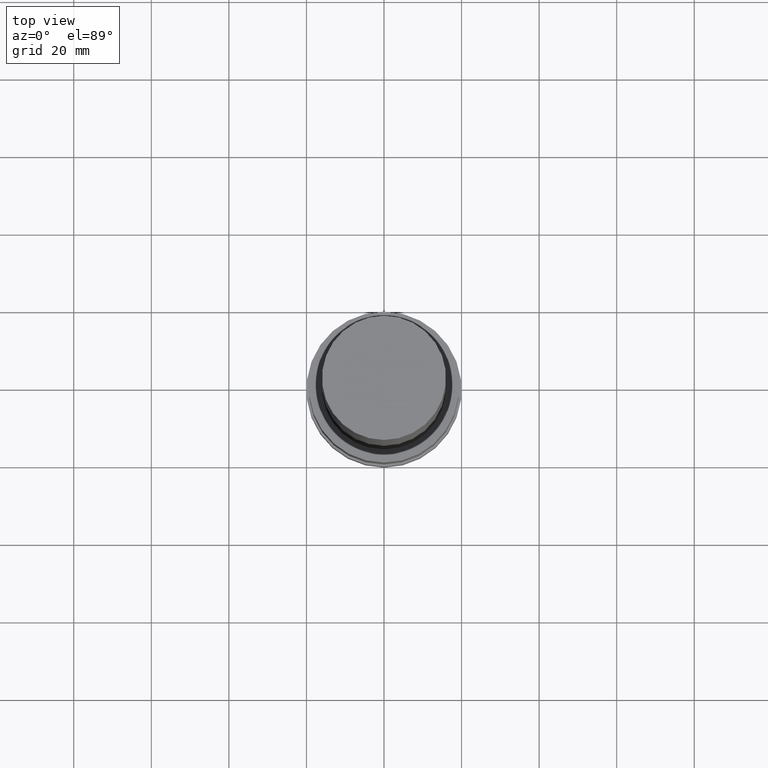
[diagram: clean part render]
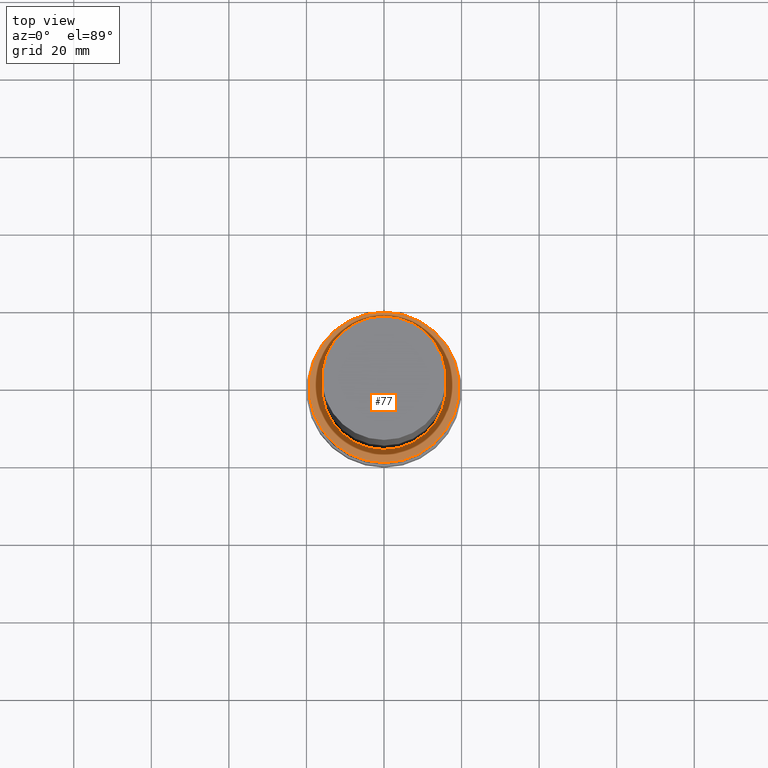
[diagram: same view with one face highlighted and labeled with its STEP entity id]
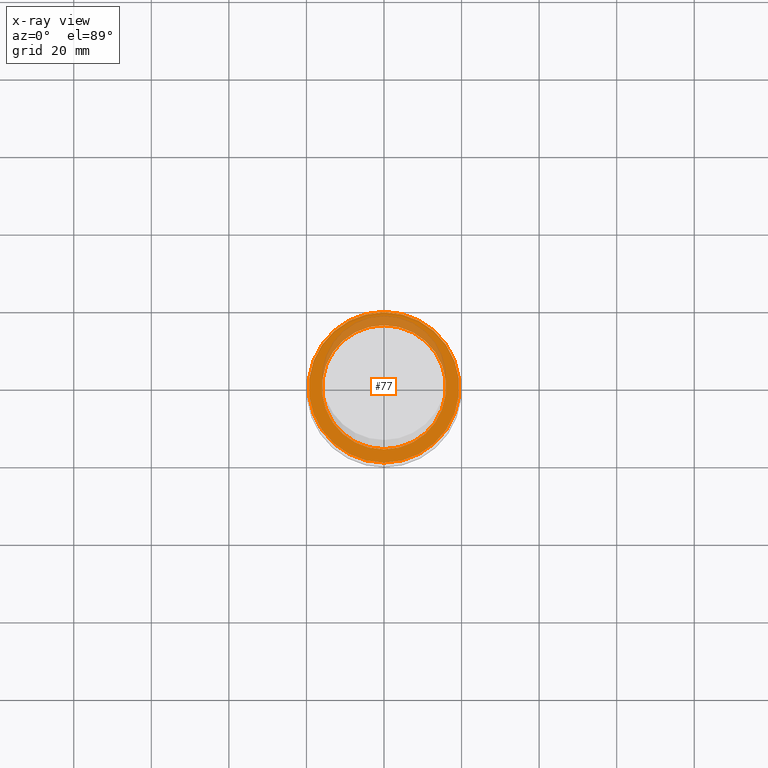
[diagram: x-ray of the same camera — body ghosted, the highlighted face saturated]
A machine part, top view. The second image highlights one B-rep face of the part: STEP entity #77.
The next image is the same camera in x-ray: the body ghosted, the highlighted face saturated — about 21% of this face is hidden behind the body in this view.
In plain terms, the highlighted planar face has unit normal (-0, -0, 1).
Its self-contained STEP definition (entity closure, byte-faithful):
#77=ADVANCED_FACE('',(#88,#89),#90,.T.);
#88=FACE_OUTER_BOUND('',#107,.T.);
#89=FACE_BOUND('',#108,.T.);
#90=PLANE('',#109);
#107=EDGE_LOOP('',(#130));
#108=EDGE_LOOP('',(#131));
#109=AXIS2_PLACEMENT_3D('',#132,#133,#134);
#130=ORIENTED_EDGE('',*,*,#156,.F.);
#131=ORIENTED_EDGE('',*,*,#155,.T.);
#132=CARTESIAN_POINT('',(-2.44929359829471E-015,17.7,40.0));
#133=DIRECTION('',(-6.12323399573677E-017,-8.37157277105126E-014,1.0));
#134=DIRECTION('',(5.1309370516793E-030,-1.0,-8.37157277105126E-014));
#155=EDGE_CURVE('',#162,#162,#163,.T.);
#156=EDGE_CURVE('',#164,#164,#165,.T.);
#162=VERTEX_POINT('',#174);
#163=CIRCLE('',#175,16.0);
#164=VERTEX_POINT('',#176);
#165=CIRCLE('',#177,19.4);
#174=CARTESIAN_POINT('',(-2.4492935982947E-015,16.0,39.9999999999999));
#175=AXIS2_PLACEMENT_3D('',#187,#188,#189);
#176=CARTESIAN_POINT('',(-2.44929359829472E-015,19.4000000000001,40.0000000000002));
#177=AXIS2_PLACEMENT_3D('',#190,#191,#192);
#187=CARTESIAN_POINT('',(-2.4492935982947E-015,7.60690730890508E-015,39.9999999999999));
#188=DIRECTION('',(6.12323399573677E-017,-1.90172682722627E-016,-1.0));
#189=DIRECTION('',(6.81756562830752E-033,1.0,-1.90172682722627E-016));
#190=CARTESIAN_POINT('',(-2.44929359829472E-015,7.60690730890513E-015,40.0000000000002));
#191=DIRECTION('',(6.12323399573677E-017,-1.90172682722627E-016,-1.0));
#192=DIRECTION('',(6.81756562830752E-033,1.0,-1.90172682722627E-016));